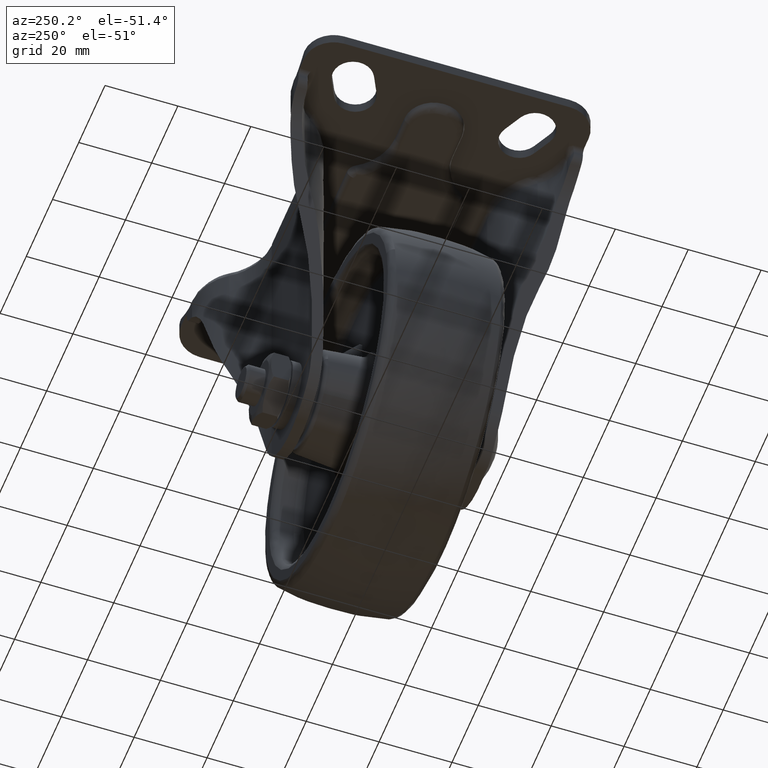
[diagram: clean part render]
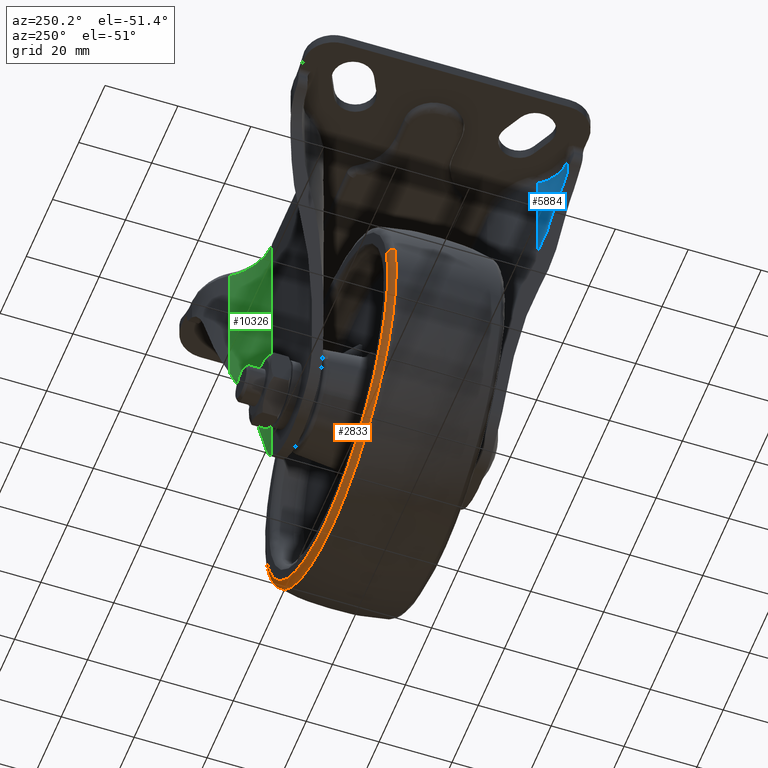
[diagram: same view with three faces highlighted in distinct colors, each labeled with its STEP entity id]
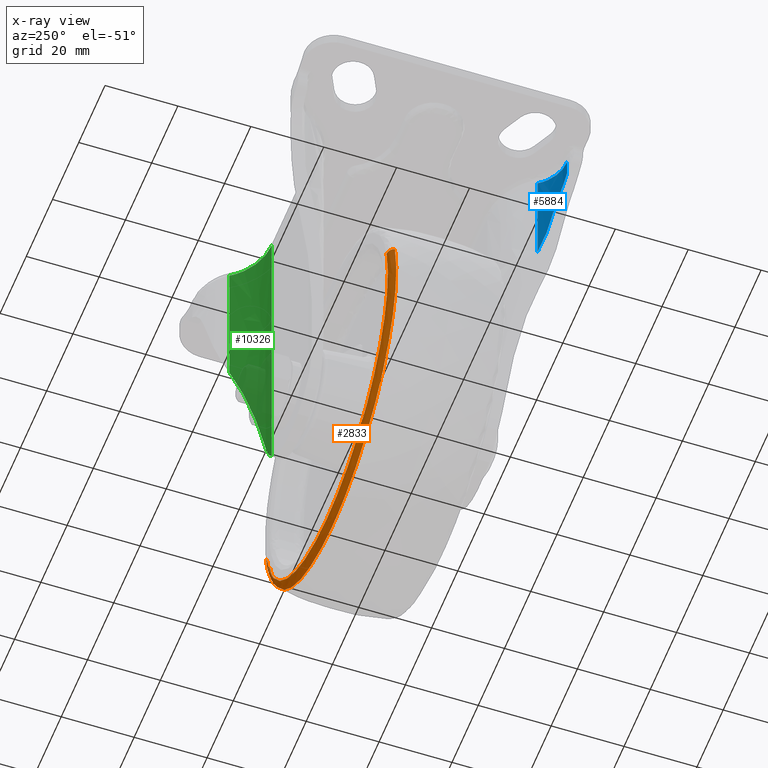
[diagram: x-ray of the same camera — body ghosted, the three highlighted faces saturated]
A machine part, auxiliary view with three faces highlighted in distinct colors.
The next image is the same camera in x-ray (body ghosted, the three faces saturated) — at least one of them is partly hidden behind the body in this view.
Their STEP definitions:

[orange] entity #2833 — the highlighted face is a freeform B-spline surface patch.
#2601=CARTESIAN_POINT('',(-45.705305604431402,16.0,9.315473251195385));
#2602=VERTEX_POINT('',#2601);
#2603=CARTESIAN_POINT('',(0.0,16.0,-46.644958000000017));
#2604=VERTEX_POINT('',#2603);
#2605=CARTESIAN_POINT('',(-45.705305604431402,16.000000000000007,9.315473251195385));
#2606=CARTESIAN_POINT('',(-46.644966001002445,15.999999999999998,4.705132872737108));
#2607=CARTESIAN_POINT('',(-46.644966000949722,16.0,0.000008000193551));
#2608=CARTESIAN_POINT('',(-46.644966000426955,15.999999999999998,-46.644957999912997));
#2609=CARTESIAN_POINT('',(0.0,16.0,-46.644958000000017));
#2617=(BOUNDED_CURVE()B_SPLINE_CURVE(2,(#2605,#2606,#2607,#2608,#2609),.UNSPECIFIED.,.F.,.U.)B_SPLINE_CURVE_WITH_KNOTS((3,2,3),(0.715767038508897,0.750000000000000,1.0),.UNSPECIFIED.)CURVE()GEOMETRIC_REPRESENTATION_ITEM()RATIONAL_B_SPLINE_CURVE((0.930770871027150,0.959893590877416,1.0,0.707106781186548,1.0))REPRESENTATION_ITEM(''));
#2618=EDGE_CURVE('',#2602,#2604,#2617,.T.);
#2635=CARTESIAN_POINT('',(45.705305604431402,16.0,-9.315457251195436));
#2636=VERTEX_POINT('',#2635);
#2652=CARTESIAN_POINT('',(0.0,16.0,-46.644958000000017));
#2653=CARTESIAN_POINT('',(38.096962054440453,16.0,-46.644958000106563));
#2654=CARTESIAN_POINT('',(45.705305604431395,16.000000000000007,-9.315457251195436));
#2662=(BOUNDED_CURVE()B_SPLINE_CURVE(2,(#2652,#2653,#2654),.UNSPECIFIED.,.F.,.U.)B_SPLINE_CURVE_WITH_KNOTS((3,3),(0.0,0.215767038508897),.UNSPECIFIED.)CURVE()GEOMETRIC_REPRESENTATION_ITEM()RATIONAL_B_SPLINE_CURVE((1.0,0.747213190309132,0.930770871027150))REPRESENTATION_ITEM(''));
#2663=EDGE_CURVE('',#2604,#2636,#2662,.T.);
#2703=CARTESIAN_POINT('',(47.628639370068768,14.383559901206800,-9.707463138120371));
#2704=VERTEX_POINT('',#2703);
#2722=CARTESIAN_POINT('',(45.705305604431395,16.000000000000004,-9.315457251195436));
#2723=CARTESIAN_POINT('',(47.319138584716441,15.999999989326794,-9.644381975588914));
#2724=CARTESIAN_POINT('',(47.628639370068768,14.383559901206800,-9.707463138120371));
#2732=(BOUNDED_CURVE()B_SPLINE_CURVE(2,(#2722,#2723,#2724),.UNSPECIFIED.,.F.,.U.)B_SPLINE_CURVE_WITH_KNOTS((3,3),(-1.707132361810783,-0.297833452152947),.UNSPECIFIED.)CURVE()GEOMETRIC_REPRESENTATION_ITEM()RATIONAL_B_SPLINE_CURVE((0.897080811329559,0.691935496517746,0.895640185042455))REPRESENTATION_ITEM(''));
#2733=EDGE_CURVE('',#2636,#2704,#2732,.T.);
#2737=CARTESIAN_POINT('',(-47.628639370068882,14.383559901206260,9.707479138120338));
#2738=VERTEX_POINT('',#2737);
#2739=CARTESIAN_POINT('',(-45.705305604431402,15.999999999999996,9.315473251195385));
#2740=CARTESIAN_POINT('',(-47.319138584716903,15.999999989326799,9.644397975588955));
#2741=CARTESIAN_POINT('',(-47.628639370068889,14.383559901206256,9.707479138120338));
#2749=(BOUNDED_CURVE()B_SPLINE_CURVE(2,(#2739,#2740,#2741),.UNSPECIFIED.,.F.,.U.)B_SPLINE_CURVE_WITH_KNOTS((3,3),(-1.707132361810785,-0.297833452152643),.UNSPECIFIED.)CURVE()GEOMETRIC_REPRESENTATION_ITEM()RATIONAL_B_SPLINE_CURVE((0.897080811329559,0.691935496517701,0.895640185042543))REPRESENTATION_ITEM(''));
#2750=EDGE_CURVE('',#2602,#2738,#2749,.T.);
#2768=CARTESIAN_POINT('',(-45.322747237074253,15.996067761564211,10.564776276270043));
#2769=CARTESIAN_POINT('',(-45.451856005460279,15.996067761564213,9.931318305445060));
#2770=CARTESIAN_POINT('',(-54.872908290013918,15.996067761564214,-36.292038464298777));
#2771=CARTESIAN_POINT('',(-9.290430912857580,15.996067761564207,-45.582469377156343));
#2772=CARTESIAN_POINT('',(36.292046464298750,15.996067761564214,-54.872900290013945));
#2773=CARTESIAN_POINT('',(45.713098748846114,15.996067761564207,-8.649543520300782));
#2774=CARTESIAN_POINT('',(45.842207517226043,15.996067761564209,-8.016085549505769));
#2775=CARTESIAN_POINT('',(-47.140548973352772,16.113240731913891,10.988507300683201));
#2776=CARTESIAN_POINT('',(-47.274836027647055,16.113240731913884,10.329642639632628));
#2777=CARTESIAN_POINT('',(-57.073747251572826,16.113240731913901,-37.747637453716131));
#2778=CARTESIAN_POINT('',(-9.663050898928365,16.113240731913894,-47.410688352644478));
#2779=CARTESIAN_POINT('',(37.747645453716082,16.113240731913901,-57.073739251572846));
#2780=CARTESIAN_POINT('',(47.546556677635351,16.113240731913894,-8.996459158256009));
#2781=CARTESIAN_POINT('',(47.680843731923275,16.113240731913894,-8.337594497236610));
#2782=CARTESIAN_POINT('',(-47.376938542555926,14.259571541186032,11.043609896483391));
#2783=CARTESIAN_POINT('',(-47.511898988645704,14.259571541186030,10.381441312657605));
#2784=CARTESIAN_POINT('',(-57.359947536029303,14.259571541186030,-37.936925653399186));
#2785=CARTESIAN_POINT('',(-9.711506941315077,14.259571541186032,-47.648432594714258));
#2786=CARTESIAN_POINT('',(37.936933653399144,14.259571541186030,-57.359939536029337));
#2787=CARTESIAN_POINT('',(47.784982200776234,14.259571541186030,-9.041572570004622));
#2788=CARTESIAN_POINT('',(47.919942646859617,14.259571541186029,-8.379403986210168));
#2796=(BOUNDED_SURFACE()B_SPLINE_SURFACE(2,2,((#2768,#2775,#2782),(#2769,#2776,#2783),(#2770,#2777,#2784),(#2771,#2778,#2785),(#2772,#2779,#2786),(#2773,#2780,#2787),(#2774,#2781,#2788)),.UNSPECIFIED.,.F.,.F.,.U.)B_SPLINE_SURFACE_WITH_KNOTS((3,1,2,1,3),(3,3),(0.0,1.611391829660666,82.180983310502370,162.750574791344090,164.361966620927210),(0.0,3.157513966809904),.UNSPECIFIED.)GEOMETRIC_REPRESENTATION_ITEM()RATIONAL_B_SPLINE_SURFACE(((0.929356911418636,0.678348677640859,0.927753812747775),(0.923975907061713,0.674421018476710,0.922382090380179),(0.649544684865954,0.474110401110460,0.648424249640069),(0.918594902704790,0.670493359312561,0.917010368012582),(0.649544684865954,0.474110401110460,0.648424249640069),(0.923975907061454,0.674421018476521,0.922382090379920),(0.929356911418118,0.678348677640481,0.927753812747258)))REPRESENTATION_ITEM('')SURFACE());
#2797=CARTESIAN_POINT('',(0.0,14.383559881593481,-48.607833880891633));
#2798=VERTEX_POINT('',#2797);
#2799=CARTESIAN_POINT('',(0.0,14.383559881593481,-48.607833880891633));
#2800=CARTESIAN_POINT('',(39.700127642834481,14.383559891400679,-48.607833890901318));
#2801=CARTESIAN_POINT('',(47.628639370068768,14.383559901206803,-9.707463138120373));
#2809=(BOUNDED_CURVE()B_SPLINE_CURVE(2,(#2799,#2800,#2801),.UNSPECIFIED.,.F.,.U.)B_SPLINE_CURVE_WITH_KNOTS((3,3),(0.0,0.215767038636052),.UNSPECIFIED.)CURVE()GEOMETRIC_REPRESENTATION_ITEM()RATIONAL_B_SPLINE_CURVE((1.0,0.747213190160160,0.930770871243497))REPRESENTATION_ITEM(''));
#2810=EDGE_CURVE('',#2798,#2704,#2809,.T.);
#2811=ORIENTED_EDGE('',*,*,#2810,.F.);
#2812=CARTESIAN_POINT('',(-47.628639370068875,14.383559901206262,9.707479138120338));
#2813=CARTESIAN_POINT('',(-48.607841783063989,14.383559900398415,4.903130147077160));
#2814=CARTESIAN_POINT('',(-48.607841778110071,14.383559899409290,0.000008018185276));
#2815=CARTESIAN_POINT('',(-48.607841728998643,14.383559889603452,-48.607833872716284));
#2816=CARTESIAN_POINT('',(0.0,14.383559881593481,-48.607833880891633));
#2824=(BOUNDED_CURVE()B_SPLINE_CURVE(2,(#2812,#2813,#2814,#2815,#2816),.UNSPECIFIED.,.F.,.U.)B_SPLINE_CURVE_WITH_KNOTS((3,2,3),(0.715767038636054,0.750000000000000,1.0),.UNSPECIFIED.)CURVE()GEOMETRIC_REPRESENTATION_ITEM()RATIONAL_B_SPLINE_CURVE((0.930770871243501,0.959893591026389,1.0,0.707106781186548,1.0))REPRESENTATION_ITEM(''));
#2825=EDGE_CURVE('',#2738,#2798,#2824,.T.);
#2826=ORIENTED_EDGE('',*,*,#2825,.F.);
#2827=ORIENTED_EDGE('',*,*,#2750,.F.);
#2828=ORIENTED_EDGE('',*,*,#2618,.T.);
#2829=ORIENTED_EDGE('',*,*,#2663,.T.);
#2830=ORIENTED_EDGE('',*,*,#2733,.T.);
#2831=EDGE_LOOP('',(#2811,#2826,#2827,#2828,#2829,#2830));
#2832=FACE_OUTER_BOUND('',#2831,.T.);
#2833=ADVANCED_FACE('',(#2832),#2796,.T.);

[blue] entity #5884 — the highlighted face is a freeform B-spline surface patch.
#5773=CARTESIAN_POINT('',(-38.718417455751897,-35.999999999999403,77.500007999999895));
#5774=VERTEX_POINT('',#5773);
#5780=CARTESIAN_POINT('',(-38.718417455751897,-35.999999999999353,72.857959865405689));
#5781=VERTEX_POINT('',#5780);
#5782=CARTESIAN_POINT('',(-38.718417455751897,-35.999999999999353,72.857959865405689));
#5783=CARTESIAN_POINT('',(-38.718417455751897,-35.999999999999403,77.500007999999895));
#5784=QUASI_UNIFORM_CURVE('',1,(#5782,#5783),.UNSPECIFIED.,.F.,.U.);
#5785=EDGE_CURVE('',#5781,#5774,#5784,.T.);
#5803=CARTESIAN_POINT('',(-29.494931748131229,-30.993944873742159,48.586601405352773));
#5804=CARTESIAN_POINT('',(-29.494931748131229,-30.993944873742159,78.222843164866092));
#5805=CARTESIAN_POINT('',(-32.930447142189671,-36.280515893428110,48.586601405352766));
#5806=CARTESIAN_POINT('',(-32.930447142189671,-36.280515893428110,78.222843164866092));
#5807=CARTESIAN_POINT('',(-39.228473180160293,-35.988168165473908,48.586601405352773));
#5808=CARTESIAN_POINT('',(-39.228473180160293,-35.988168165473908,78.222843164866092));
#5816=(BOUNDED_SURFACE()B_SPLINE_SURFACE(1,2,((#5803,#5805,#5807),(#5804,#5806,#5808)),.UNSPECIFIED.,.F.,.F.,.U.)B_SPLINE_SURFACE_WITH_KNOTS((2,2),(3,3),(0.0,29.636241759513339),(0.0,11.715632398438959),.UNSPECIFIED.)GEOMETRIC_REPRESENTATION_ITEM()RATIONAL_B_SPLINE_SURFACE(((1.0,0.866867436081429,0.998326519776626),(1.0,0.866867436081429,0.998326519776626)))REPRESENTATION_ITEM('')SURFACE());
#5817=ORIENTED_EDGE('',*,*,#5785,.T.);
#5818=CARTESIAN_POINT('',(-29.654995590257549,-31.233333516661801,77.500007999999895));
#5819=VERTEX_POINT('',#5818);
#5820=CARTESIAN_POINT('',(-38.718417455751897,-35.999999999999453,77.500007999999895));
#5821=CARTESIAN_POINT('',(-32.933254624425921,-36.000001817461907,77.500007999999895));
#5822=CARTESIAN_POINT('',(-29.654995590257531,-31.233333516661808,77.500007999999895));
#5830=(BOUNDED_CURVE()B_SPLINE_CURVE(2,(#5820,#5821,#5822),.UNSPECIFIED.,.F.,.U.)CURVE()GEOMETRIC_REPRESENTATION_ITEM()QUASI_UNIFORM_CURVE()RATIONAL_B_SPLINE_CURVE((1.0,0.885061134747834,1.0))REPRESENTATION_ITEM(''));
#5831=EDGE_CURVE('',#5774,#5819,#5830,.T.);
#5832=ORIENTED_EDGE('',*,*,#5831,.T.);
#5833=CARTESIAN_POINT('',(-29.654995590257549,-31.233333516661801,49.291806444246603));
#5834=VERTEX_POINT('',#5833);
#5835=CARTESIAN_POINT('',(-29.654995590257549,-31.233333516661801,49.291806444246603));
#5836=CARTESIAN_POINT('',(-29.654995590257549,-31.233333516661801,77.500007999999895));
#5837=QUASI_UNIFORM_CURVE('',1,(#5835,#5836),.UNSPECIFIED.,.F.,.U.);
#5838=EDGE_CURVE('',#5834,#5819,#5837,.T.);
#5839=ORIENTED_EDGE('',*,*,#5838,.F.);
#5840=CARTESIAN_POINT('',(-33.235935310534998,-34.536373017213997,64.170860591709896));
#5841=VERTEX_POINT('',#5840);
#5842=CARTESIAN_POINT('',(-29.654995590257549,-31.233333516661801,49.291806444246603));
#5843=CARTESIAN_POINT('',(-31.070443099120123,-33.291427672308380,55.173089437964514));
#5844=CARTESIAN_POINT('',(-33.235935310534998,-34.536373017213997,64.170860591709896));
#5852=(BOUNDED_CURVE()B_SPLINE_CURVE(2,(#5842,#5843,#5844),.UNSPECIFIED.,.F.,.U.)CURVE()GEOMETRIC_REPRESENTATION_ITEM()QUASI_UNIFORM_CURVE()RATIONAL_B_SPLINE_CURVE((1.0,0.975174080606986,1.0))REPRESENTATION_ITEM(''));
#5853=EDGE_CURVE('',#5834,#5841,#5852,.T.);
#5854=ORIENTED_EDGE('',*,*,#5853,.T.);
#5855=CARTESIAN_POINT('',(-38.718417455751883,-35.999999999999453,72.857959865405689));
#5856=CARTESIAN_POINT('',(-38.374999851770390,-36.000000107887267,72.579672656709718));
#5857=CARTESIAN_POINT('',(-38.045240959274032,-35.983983362383277,72.288927334104585));
#5858=CARTESIAN_POINT('',(-37.412044934066891,-35.926776849164902,71.682888100324433));
#5859=CARTESIAN_POINT('',(-37.108610583001308,-35.885562954159063,71.367593632972643));
#5860=CARTESIAN_POINT('',(-36.672956372520019,-35.809155381516582,70.876082630480042));
#5861=CARTESIAN_POINT('',(-36.530992764687170,-35.781248848968090,70.709146311915390));
#5862=CARTESIAN_POINT('',(-36.253591533485547,-35.721230741507199,70.368994004023676));
#5863=CARTESIAN_POINT('',(-36.117890638144857,-35.689043829976100,70.195405371671640));
#5864=CARTESIAN_POINT('',(-35.723917015531264,-35.588036023211572,69.669513906114148));
#5865=CARTESIAN_POINT('',(-35.477910599049700,-35.514657232127639,69.311206288098873));
#5866=CARTESIAN_POINT('',(-35.017400890304778,-35.361533716712451,68.578973338783726));
#5867=CARTESIAN_POINT('',(-34.802902710869382,-35.281774409915428,68.205048192120955));
#5868=CARTESIAN_POINT('',(-34.404599325695692,-35.121122300785530,67.440964531131783));
#5869=CARTESIAN_POINT('',(-34.220794861445867,-35.040219867229247,67.050807552114577));
#5870=CARTESIAN_POINT('',(-33.968150770379161,-34.921877215212852,66.452599141613490));
#5871=CARTESIAN_POINT('',(-33.887786577729443,-34.882931693541167,66.251030528785961));
#5872=CARTESIAN_POINT('',(-33.773084270946050,-34.825758948240711,65.945293462781933));
#5873=CARTESIAN_POINT('',(-33.735824616821567,-34.806909045134162,65.842816823168747));
#5874=CARTESIAN_POINT('',(-33.663271182847282,-34.769707932128043,65.636709144552711));
#5875=CARTESIAN_POINT('',(-33.627937654305242,-34.751335680952756,65.532955592238807));
#5876=CARTESIAN_POINT('',(-33.456759970185551,-34.661208448727052,65.012838158079717));
#5877=CARTESIAN_POINT('',(-33.337656701482381,-34.594853726307413,64.593520363714831));
#5878=CARTESIAN_POINT('',(-33.235935292381797,-34.536373903141168,64.170860516282119));
#5879=B_SPLINE_CURVE_WITH_KNOTS('',3,(#5855,#5856,#5857,#5858,#5859,#5860,#5861,#5862,#5863,#5864,#5865,#5866,#5867,#5868,#5869,#5870,#5871,#5872,#5873,#5874,#5875,#5876,#5877,#5878),.UNSPECIFIED.,.F.,.U.,(4,2,2,2,2,2,2,2,2,2,2,4),(0.0,0.125000000000002,0.250000000000004,0.312500000000004,0.375000000000005,0.500000000000005,0.625000000000006,0.750000000000006,0.812500000000005,0.843750000000005,0.875000000000006,1.0),.UNSPECIFIED.);
#5880=EDGE_CURVE('',#5781,#5841,#5879,.T.);
#5881=ORIENTED_EDGE('',*,*,#5880,.F.);
#5882=EDGE_LOOP('',(#5817,#5832,#5839,#5854,#5881));
#5883=FACE_OUTER_BOUND('',#5882,.T.);
#5884=ADVANCED_FACE('',(#5883),#5816,.F.);

[green] entity #10326 — the highlighted face is a freeform B-spline surface patch.
#8765=CARTESIAN_POINT('',(13.999997663984420,26.0,-8.313712899421670));
#8766=VERTEX_POINT('',#8765);
#8767=CARTESIAN_POINT('',(17.500309285302301,26.387574342619651,-1.211794659477174));
#8768=VERTEX_POINT('',#8767);
#8769=CARTESIAN_POINT('',(13.999997663984420,26.0,-8.313712899421670));
#8770=CARTESIAN_POINT('',(14.105272912993300,25.999999984629898,-8.183441505637674));
#8771=CARTESIAN_POINT('',(14.209039462638540,26.001043007780719,-8.051302067876165));
#8772=CARTESIAN_POINT('',(14.412198960761719,26.004987828933370,-7.785017446040809));
#8773=CARTESIAN_POINT('',(14.511712317045090,26.007887407503919,-7.650731447218932));
#8774=CARTESIAN_POINT('',(14.804129593237970,26.019028994981920,-7.244468813910924));
#8775=CARTESIAN_POINT('',(14.990916029114040,26.029708390727262,-6.969090320204305));
#8776=CARTESIAN_POINT('',(15.527211279874001,26.069019479188491,-6.129452557917061));
#8777=CARTESIAN_POINT('',(15.852735292774209,26.104869668807190,-5.551733892160994));
#8778=CARTESIAN_POINT('',(16.293174644037720,26.164492457467109,-4.657860719853757));
#8779=CARTESIAN_POINT('',(16.431993423500700,26.185356641735229,-4.355343123857664));
#8780=CARTESIAN_POINT('',(16.628067433001782,26.217172442560880,-3.894582827280797));
#8781=CARTESIAN_POINT('',(16.691476117699601,26.227878660682570,-3.739630956538194));
#8782=CARTESIAN_POINT('',(16.813805638613530,26.249242778126309,-3.428369974136369));
#8783=CARTESIAN_POINT('',(16.872666457759330,26.259888805939909,-3.272232746984259));
#8784=CARTESIAN_POINT('',(17.155594701802180,26.312577339137128,-2.489027518136317));
#8785=CARTESIAN_POINT('',(17.345648178409331,26.352899288248750,-1.854422651902265));
#8786=CARTESIAN_POINT('',(17.500309285302279,26.387574342619729,-1.211794659477169));
#8787=B_SPLINE_CURVE_WITH_KNOTS('',3,(#8769,#8770,#8771,#8772,#8773,#8774,#8775,#8776,#8777,#8778,#8779,#8780,#8781,#8782,#8783,#8784,#8785,#8786),.UNSPECIFIED.,.F.,.U.,(4,2,2,2,2,2,2,2,4),(0.0,0.062500000000000,0.125000000000000,0.250000000000001,0.500000000000001,0.625000000000001,0.687500000000001,0.750000000000001,1.0),.UNSPECIFIED.);
#8788=EDGE_CURVE('',#8766,#8768,#8787,.T.);
#8940=CARTESIAN_POINT('',(27.183159190444950,32.933340814476452,39.021141212388102));
#8941=VERTEX_POINT('',#8940);
#8942=CARTESIAN_POINT('',(17.500309285302301,26.387574342619651,-1.211794659477174));
#8943=CARTESIAN_POINT('',(23.625851549230077,27.760922272946175,24.240272810257789));
#8944=CARTESIAN_POINT('',(27.183159379054711,32.933340814476452,39.021141996075229));
#8952=(BOUNDED_CURVE()B_SPLINE_CURVE(2,(#8942,#8943,#8944),.UNSPECIFIED.,.F.,.U.)CURVE()GEOMETRIC_REPRESENTATION_ITEM()QUASI_UNIFORM_CURVE()RATIONAL_B_SPLINE_CURVE((1.0,0.930911932846839,1.0))REPRESENTATION_ITEM(''));
#8953=EDGE_CURVE('',#8768,#8941,#8952,.T.);
#10265=CARTESIAN_POINT('',(13.999997663984420,26.0,79.000008000000093));
#10266=VERTEX_POINT('',#10265);
#10272=CARTESIAN_POINT('',(13.999997663984420,26.0,-8.313712899421670));
#10273=CARTESIAN_POINT('',(13.999997663984420,26.0,79.000008000000093));
#10274=QUASI_UNIFORM_CURVE('',1,(#10272,#10273),.UNSPECIFIED.,.F.,.U.);
#10275=EDGE_CURVE('',#8766,#10266,#10274,.T.);
#10287=CARTESIAN_POINT('',(27.566093994931901,33.517011510047347,-10.496555921907220));
#10288=CARTESIAN_POINT('',(27.566093994931901,33.517011510047347,81.237422098047773));
#10289=CARTESIAN_POINT('',(22.605693763251555,25.584281685509563,-10.496555921907222));
#10290=CARTESIAN_POINT('',(22.605693763251555,25.584281685509563,81.237422098047773));
#10291=CARTESIAN_POINT('',(13.259763472403048,26.017132613851448,-10.496555921907220));
#10292=CARTESIAN_POINT('',(13.259763472403048,26.017132613851448,81.237422098047773));
#10300=(BOUNDED_SURFACE()B_SPLINE_SURFACE(1,2,((#10287,#10289,#10291),(#10288,#10290,#10292)),.UNSPECIFIED.,.F.,.F.,.U.)B_SPLINE_SURFACE_WITH_KNOTS((2,2),(3,3),(0.0,91.733978019955003),(0.0,17.338537995610999),.UNSPECIFIED.)GEOMETRIC_REPRESENTATION_ITEM()RATIONAL_B_SPLINE_SURFACE(((1.0,0.862500014087063,0.998269254354809),(1.0,0.862500014087063,0.998269254354809)))REPRESENTATION_ITEM('')SURFACE());
#10301=ORIENTED_EDGE('',*,*,#10275,.T.);
#10302=CARTESIAN_POINT('',(27.183159190444950,32.933340814476452,79.000008000000093));
#10303=VERTEX_POINT('',#10302);
#10304=CARTESIAN_POINT('',(13.999997663984420,26.000000000000171,79.000008000000093));
#10305=CARTESIAN_POINT('',(22.414784180604858,25.999998771433212,79.000008000000093));
#10306=CARTESIAN_POINT('',(27.183159318490119,32.933340726413952,79.000008000000093));
#10314=(BOUNDED_CURVE()B_SPLINE_CURVE(2,(#10304,#10305,#10306),.UNSPECIFIED.,.F.,.U.)CURVE()GEOMETRIC_REPRESENTATION_ITEM()QUASI_UNIFORM_CURVE()RATIONAL_B_SPLINE_CURVE((1.0,0.885061038658351,1.0))REPRESENTATION_ITEM(''));
#10315=EDGE_CURVE('',#10266,#10303,#10314,.T.);
#10316=ORIENTED_EDGE('',*,*,#10315,.T.);
#10317=CARTESIAN_POINT('',(27.183159190444950,32.933340814476452,39.021141212388102));
#10318=CARTESIAN_POINT('',(27.183159190444950,32.933340814476452,79.000008000000093));
#10319=QUASI_UNIFORM_CURVE('',1,(#10317,#10318),.UNSPECIFIED.,.F.,.U.);
#10320=EDGE_CURVE('',#8941,#10303,#10319,.T.);
#10321=ORIENTED_EDGE('',*,*,#10320,.F.);
#10322=ORIENTED_EDGE('',*,*,#8953,.F.);
#10323=ORIENTED_EDGE('',*,*,#8788,.F.);
#10324=EDGE_LOOP('',(#10301,#10316,#10321,#10322,#10323));
#10325=FACE_OUTER_BOUND('',#10324,.T.);
#10326=ADVANCED_FACE('',(#10325),#10300,.F.);